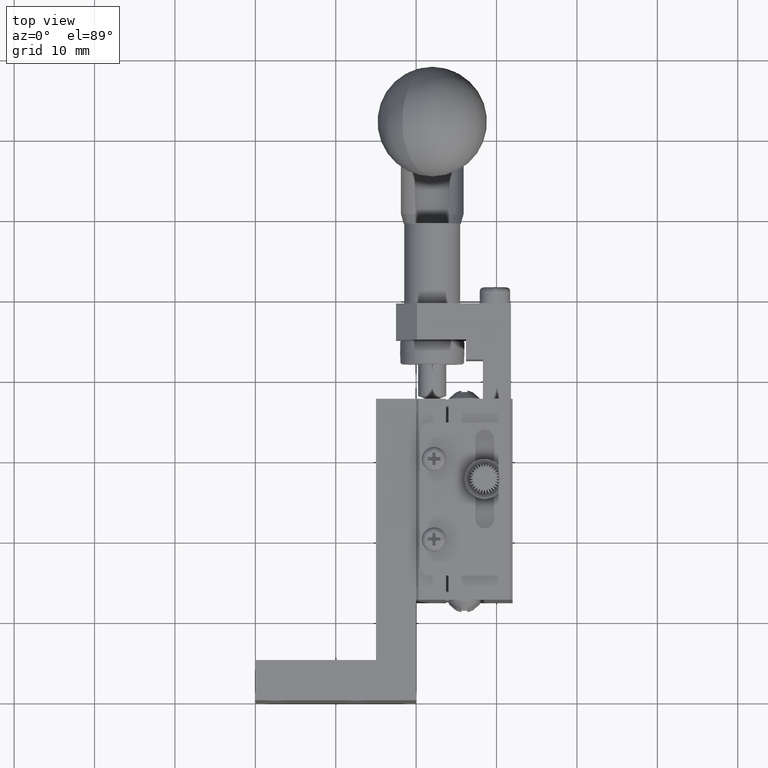
[diagram: clean part render]
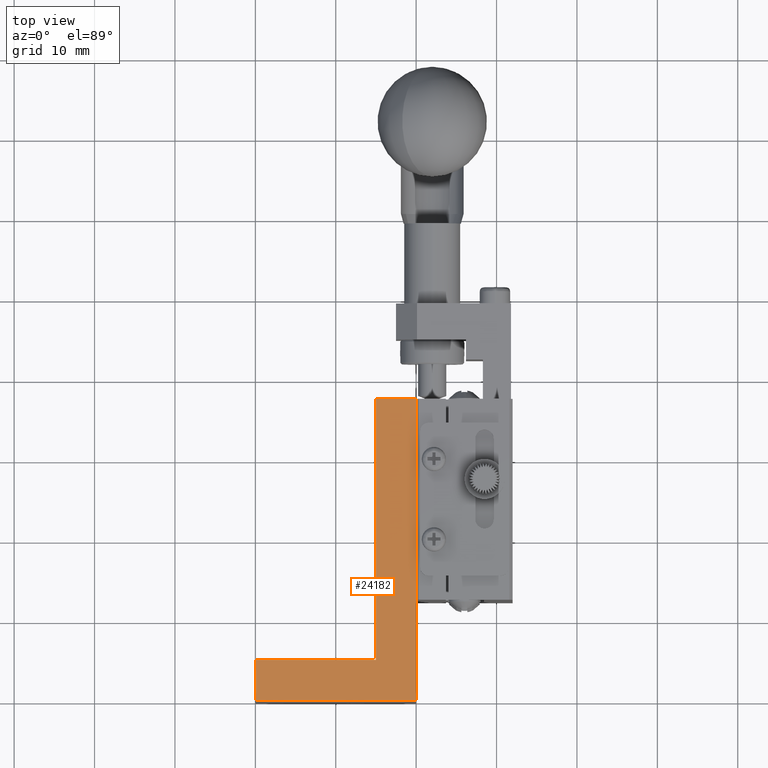
[diagram: same view with one face highlighted and labeled with its STEP entity id]
A machine part, top view. The second image highlights one B-rep face of the part: STEP entity #24182.
In plain terms, the highlighted planar face has unit normal (0, 0, 1).
Its self-contained STEP definition (entity closure, byte-faithful):
#677 = LINE ( 'NONE', #86661, #57938 ) ;
#1008 = CARTESIAN_POINT ( 'NONE',  ( -20.00000000000000000, 5.000000000000000000, 0.000000000000000000 ) ) ;
#10907 = EDGE_LOOP ( 'NONE', ( #55279, #64524, #56668, #42971, #40472, #38464 ) ) ;
#18408 = VERTEX_POINT ( 'NONE', #1008 ) ;
#18593 = LINE ( 'NONE', #77473, #86374 ) ;
#19917 = VERTEX_POINT ( 'NONE', #79217 ) ;
#21728 = DIRECTION ( 'NONE',  ( 0.000000000000000000, -1.000000000000000000, -0.000000000000000000 ) ) ;
#24182 = ADVANCED_FACE ( 'NONE', ( #57282 ), #36241, .T. ) ;
#27917 = CARTESIAN_POINT ( 'NONE',  ( 0.000000000000000000, 5.000000000000000000, 0.000000000000000000 ) ) ;
#29392 = CARTESIAN_POINT ( 'NONE',  ( -5.000000000000000000, 0.000000000000000000, 0.000000000000000000 ) ) ;
#34610 = CARTESIAN_POINT ( 'NONE',  ( -20.00000000000000000, 0.000000000000000000, 0.000000000000000000 ) ) ;
#34676 = VERTEX_POINT ( 'NONE', #51411 ) ;
#35470 = VECTOR ( 'NONE', #92486, 1000.000000000000000 ) ;
#36241 = PLANE ( 'NONE',  #78651 ) ;
#36526 = VECTOR ( 'NONE', #77876, 1000.000000000000000 ) ;
#38464 = ORIENTED_EDGE ( 'NONE', *, *, #62715, .F. ) ;
#40472 = ORIENTED_EDGE ( 'NONE', *, *, #60096, .F. ) ;
#42971 = ORIENTED_EDGE ( 'NONE', *, *, #66882, .T. ) ;
#45555 = DIRECTION ( 'NONE',  ( 1.000000000000000000, 0.000000000000000000, -0.000000000000000000 ) ) ;
#51411 = CARTESIAN_POINT ( 'NONE',  ( -5.000000000000000000, 4.999999999999999112, 0.000000000000000000 ) ) ;
#51655 = LINE ( 'NONE', #57284, #89354 ) ;
#53886 = VERTEX_POINT ( 'NONE', #75094 ) ;
#55217 = VERTEX_POINT ( 'NONE', #85709 ) ;
#55279 = ORIENTED_EDGE ( 'NONE', *, *, #64064, .F. ) ;
#55559 = DIRECTION ( 'NONE',  ( 1.000000000000000000, 0.000000000000000000, -0.000000000000000000 ) ) ;
#56668 = ORIENTED_EDGE ( 'NONE', *, *, #83372, .T. ) ;
#57282 = FACE_OUTER_BOUND ( 'NONE', #10907, .T. ) ;
#57284 = CARTESIAN_POINT ( 'NONE',  ( -20.00000000000000000, 0.000000000000000000, 0.000000000000000000 ) ) ;
#57798 = CARTESIAN_POINT ( 'NONE',  ( 0.000000000000000000, 37.50000000000000000, 0.000000000000000000 ) ) ;
#57938 = VECTOR ( 'NONE', #63800, 1000.000000000000000 ) ;
#60096 = EDGE_CURVE ( 'NONE', #19917, #53886, #77579, .T. ) ;
#60467 = DIRECTION ( 'NONE',  ( 0.000000000000000000, 0.000000000000000000, 1.000000000000000000 ) ) ;
#62715 = EDGE_CURVE ( 'NONE', #74840, #19917, #677, .T. ) ;
#63800 = DIRECTION ( 'NONE',  ( 0.000000000000000000, -1.000000000000000000, -0.000000000000000000 ) ) ;
#64064 = EDGE_CURVE ( 'NONE', #55217, #74840, #18593, .T. ) ;
#64524 = ORIENTED_EDGE ( 'NONE', *, *, #81498, .T. ) ;
#64712 = CARTESIAN_POINT ( 'NONE',  ( 0.000000000000000000, 0.000000000000000000, 0.000000000000000000 ) ) ;
#64871 = DIRECTION ( 'NONE',  ( 0.000000000000000000, -1.000000000000000000, -0.000000000000000000 ) ) ;
#66882 = EDGE_CURVE ( 'NONE', #18408, #53886, #51655, .T. ) ;
#70393 = LINE ( 'NONE', #27917, #36526 ) ;
#74840 = VERTEX_POINT ( 'NONE', #57798 ) ;
#75094 = CARTESIAN_POINT ( 'NONE',  ( -20.00000000000000000, 0.000000000000000000, 0.000000000000000000 ) ) ;
#77473 = CARTESIAN_POINT ( 'NONE',  ( 0.000000000000000000, 37.50000000000000000, 0.000000000000000000 ) ) ;
#77579 = LINE ( 'NONE', #34610, #35470 ) ;
#77876 = DIRECTION ( 'NONE',  ( -1.000000000000000000, -0.000000000000000000, 0.000000000000000000 ) ) ;
#78651 = AXIS2_PLACEMENT_3D ( 'NONE', #64712, #60467, #45555 ) ;
#79217 = CARTESIAN_POINT ( 'NONE',  ( 0.000000000000000000, 0.000000000000000000, 0.000000000000000000 ) ) ;
#81498 = EDGE_CURVE ( 'NONE', #55217, #34676, #86364, .T. ) ;
#83372 = EDGE_CURVE ( 'NONE', #34676, #18408, #70393, .T. ) ;
#85709 = CARTESIAN_POINT ( 'NONE',  ( -5.000000000000000000, 37.50000000000000000, 0.000000000000000000 ) ) ;
#86364 = LINE ( 'NONE', #29392, #87168 ) ;
#86374 = VECTOR ( 'NONE', #55559, 1000.000000000000000 ) ;
#86661 = CARTESIAN_POINT ( 'NONE',  ( 0.000000000000000000, 0.000000000000000000, 0.000000000000000000 ) ) ;
#87168 = VECTOR ( 'NONE', #64871, 1000.000000000000000 ) ;
#89354 = VECTOR ( 'NONE', #21728, 1000.000000000000000 ) ;
#92486 = DIRECTION ( 'NONE',  ( -1.000000000000000000, -0.000000000000000000, -0.000000000000000000 ) ) ;